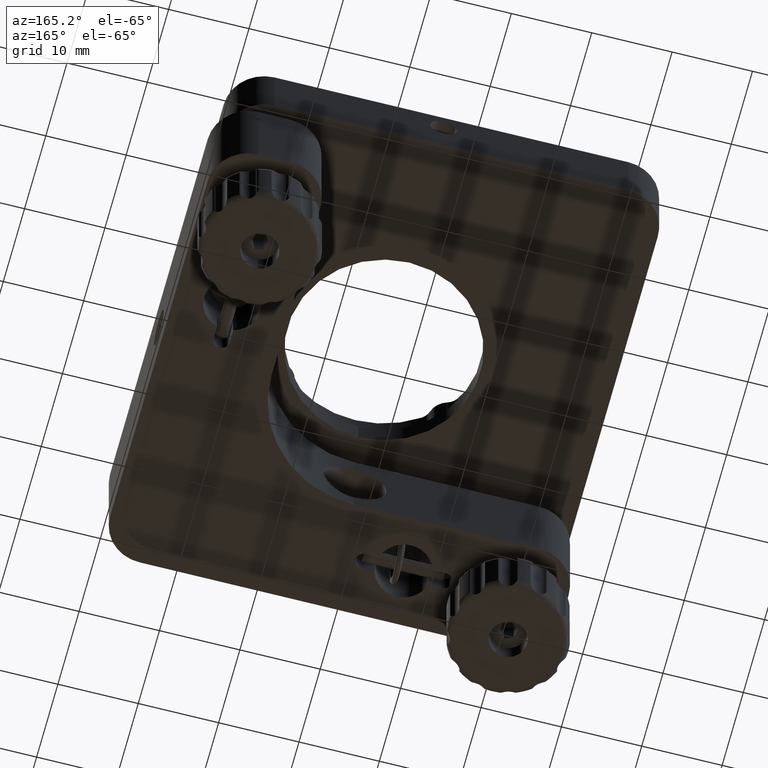
[diagram: clean part render]
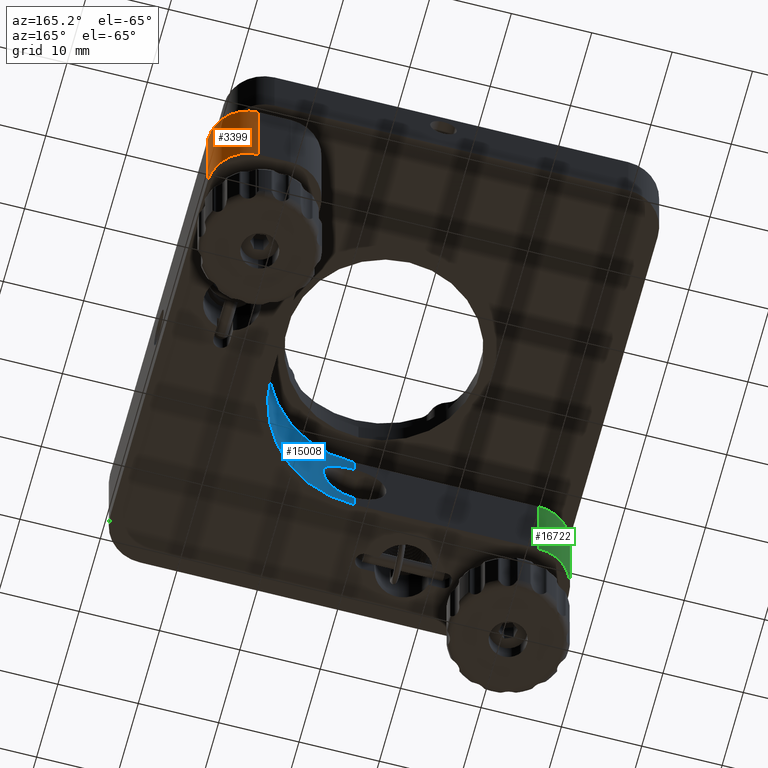
[diagram: same view with three faces highlighted in distinct colors, each labeled with its STEP entity id]
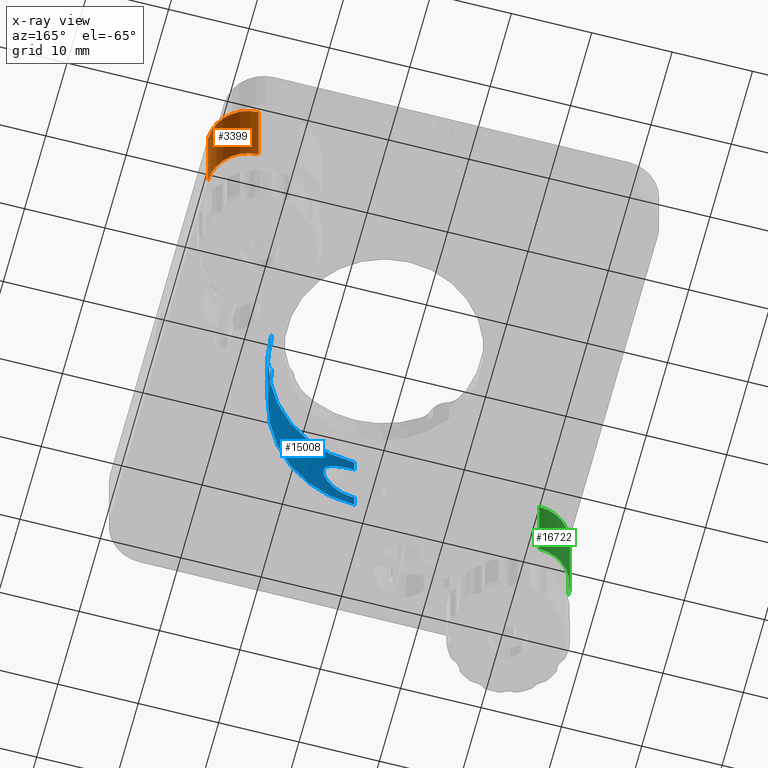
[diagram: x-ray of the same camera — body ghosted, the three highlighted faces saturated]
A machine part, auxiliary view with three faces highlighted in distinct colors.
The next image is the same camera in x-ray (body ghosted, the three faces saturated) — at least one of them is partly hidden behind the body in this view.
Their STEP definitions:

[orange] entity #3399 — the highlighted cylindrical surface (partial cylindrical patch) has radius 5 mm, axis along (0, 0, 1).
#455 = CARTESIAN_POINT ( 'NONE',  ( 28.00000000000000400, 22.99999999999996800, -3.000000000000002700 ) ) ;
#468 = LINE ( 'NONE', #11693, #11351 ) ;
#676 = DIRECTION ( 'NONE',  ( 0.0000000000000000000, 0.0000000000000000000, 1.000000000000000000 ) ) ;
#1554 = AXIS2_PLACEMENT_3D ( 'NONE', #10668, #5513, #11897 ) ;
#2326 = VECTOR ( 'NONE', #13970, 1000.000000000000000 ) ;
#2407 = CARTESIAN_POINT ( 'NONE',  ( 22.99999999999997200, 28.00000000000000000, -3.000000000000002700 ) ) ;
#3018 = ORIENTED_EDGE ( 'NONE', *, *, #9035, .T. ) ;
#3065 = AXIS2_PLACEMENT_3D ( 'NONE', #13152, #9149, #13205 ) ;
#3277 = CARTESIAN_POINT ( 'NONE',  ( 23.00000000000000700, 23.00000000000000000, -15.00000000000000400 ) ) ;
#3399 = ADVANCED_FACE ( 'NONE', ( #11739 ), #16554, .T. ) ;
#3422 = CIRCLE ( 'NONE', #1554, 4.999999999999997300 ) ;
#4701 = ORIENTED_EDGE ( 'NONE', *, *, #10144, .F. ) ;
#5513 = DIRECTION ( 'NONE',  ( 0.0000000000000000000, 0.0000000000000000000, 1.000000000000000000 ) ) ;
#5562 = CARTESIAN_POINT ( 'NONE',  ( 22.99999999999997200, 28.00000000000000000, -15.00000000000000400 ) ) ;
#5801 = VERTEX_POINT ( 'NONE', #2407 ) ;
#6642 = ORIENTED_EDGE ( 'NONE', *, *, #16515, .F. ) ;
#6994 = VERTEX_POINT ( 'NONE', #455 ) ;
#7141 = ORIENTED_EDGE ( 'NONE', *, *, #8921, .T. ) ;
#7391 = CARTESIAN_POINT ( 'NONE',  ( 28.00000000000000400, 22.99999999999996800, -15.00000000000000400 ) ) ;
#8460 = VERTEX_POINT ( 'NONE', #9209 ) ;
#8921 = EDGE_CURVE ( 'NONE', #8460, #14984, #15746, .T. ) ;
#9035 = EDGE_CURVE ( 'NONE', #14984, #5801, #468, .T. ) ;
#9149 = DIRECTION ( 'NONE',  ( 0.0000000000000000000, 0.0000000000000000000, 1.000000000000000000 ) ) ;
#9209 = CARTESIAN_POINT ( 'NONE',  ( 28.00000000000000400, 22.99999999999996800, -15.00000000000000400 ) ) ;
#10007 = AXIS2_PLACEMENT_3D ( 'NONE', #3277, #676, #14038 ) ;
#10144 = EDGE_CURVE ( 'NONE', #8460, #6994, #15955, .T. ) ;
#10411 = DIRECTION ( 'NONE',  ( 0.0000000000000000000, 0.0000000000000000000, 1.000000000000000000 ) ) ;
#10668 = CARTESIAN_POINT ( 'NONE',  ( 23.00000000000000700, 23.00000000000000000, -3.000000000000002700 ) ) ;
#11351 = VECTOR ( 'NONE', #10411, 1000.000000000000000 ) ;
#11693 = CARTESIAN_POINT ( 'NONE',  ( 22.99999999999997200, 28.00000000000000000, -15.00000000000000400 ) ) ;
#11739 = FACE_OUTER_BOUND ( 'NONE', #14529, .T. ) ;
#11897 = DIRECTION ( 'NONE',  ( -1.000000000000000000, 0.0000000000000000000, 0.0000000000000000000 ) ) ;
#13152 = CARTESIAN_POINT ( 'NONE',  ( 23.00000000000000700, 23.00000000000000000, -15.00000000000000400 ) ) ;
#13205 = DIRECTION ( 'NONE',  ( -1.000000000000000000, 0.0000000000000000000, 0.0000000000000000000 ) ) ;
#13970 = DIRECTION ( 'NONE',  ( 0.0000000000000000000, 0.0000000000000000000, 1.000000000000000000 ) ) ;
#14038 = DIRECTION ( 'NONE',  ( 1.000000000000000000, 0.0000000000000000000, 0.0000000000000000000 ) ) ;
#14529 = EDGE_LOOP ( 'NONE', ( #6642, #4701, #7141, #3018 ) ) ;
#14984 = VERTEX_POINT ( 'NONE', #5562 ) ;
#15746 = CIRCLE ( 'NONE', #3065, 4.999999999999997300 ) ;
#15955 = LINE ( 'NONE', #7391, #2326 ) ;
#16515 = EDGE_CURVE ( 'NONE', #6994, #5801, #3422, .T. ) ;
#16554 = CYLINDRICAL_SURFACE ( 'NONE', #10007, 4.999999999999997300 ) ;

[blue] entity #15008 — the highlighted cylindrical surface (partial cylindrical patch) has radius 14 mm, axis along (0, 0, 1).
#17 = CARTESIAN_POINT ( 'NONE',  ( 1.047381011669524100, -13.96315642665532800, -5.130604477163552200 ) ) ;
#49 = DIRECTION ( 'NONE',  ( 1.000000000000000000, 0.0000000000000000000, 0.0000000000000000000 ) ) ;
#98 = CARTESIAN_POINT ( 'NONE',  ( 4.000254002805889700, -13.41633213603272200, -8.741554895105029000 ) ) ;
#248 = VERTEX_POINT ( 'NONE', #4312 ) ;
#284 = ORIENTED_EDGE ( 'NONE', *, *, #12451, .F. ) ;
#365 = EDGE_CURVE ( 'NONE', #10801, #4071, #15535, .T. ) ;
#402 = CARTESIAN_POINT ( 'NONE',  ( 13.56410657494756800, -3.469533750978846900, -11.00782242321290400 ) ) ;
#521 = CARTESIAN_POINT ( 'NONE',  ( 13.78728799883474600, -2.441092728835792400, -12.17948764369810300 ) ) ;
#1021 = LINE ( 'NONE', #1031, #11290 ) ;
#1031 = CARTESIAN_POINT ( 'NONE',  ( -3.003590182049984500E-017, -14.00000000000000000, -15.00000000000000400 ) ) ;
#1088 = DIRECTION ( 'NONE',  ( 0.0000000000000000000, 0.0000000000000000000, 1.000000000000000000 ) ) ;
#1171 = EDGE_CURVE ( 'NONE', #2147, #17198, #12969, .T. ) ;
#1252 = CARTESIAN_POINT ( 'NONE',  ( 14.00000000000000000, 1.901779485492735500E-015, -5.000000000000005300 ) ) ;
#1330 = CARTESIAN_POINT ( 'NONE',  ( -3.003590182049984500E-017, 0.0000000000000000000, -15.00000000000000400 ) ) ;
#1398 = DIRECTION ( 'NONE',  ( 1.000000000000000000, 0.0000000000000000000, 0.0000000000000000000 ) ) ;
#1439 = CARTESIAN_POINT ( 'NONE',  ( 1.294466742960149700, -13.94215066161716100, -12.79380740204941300 ) ) ;
#1632 = CARTESIAN_POINT ( 'NONE',  ( 14.00000000000000000, -0.2656925048559734000, -13.00000000000000000 ) ) ;
#1676 = CARTESIAN_POINT ( 'NONE',  ( 13.74908823207572400, -2.645304200214632300, -12.01158405573234200 ) ) ;
#1734 = CARTESIAN_POINT ( 'NONE',  ( 13.47603777632076000, -3.795697206113587600, -7.710862613213605800 ) ) ;
#1847 = CARTESIAN_POINT ( 'NONE',  ( 13.45445197353499000, -3.870481272222657100, -10.04346952809518700 ) ) ;
#2026 = ORIENTED_EDGE ( 'NONE', *, *, #9817, .T. ) ;
#2119 = CARTESIAN_POINT ( 'NONE',  ( 14.00000000000000000, 1.901779485492735500E-015, -15.00000000000000400 ) ) ;
#2147 = VERTEX_POINT ( 'NONE', #15147 ) ;
#2241 = CARTESIAN_POINT ( 'NONE',  ( -3.003590182049984500E-017, -13.99999999999999800, -5.000000000000002700 ) ) ;
#2673 = CARTESIAN_POINT ( 'NONE',  ( 0.2657086982105468200, -14.00000000000000000, -5.000000000000002700 ) ) ;
#2723 = CARTESIAN_POINT ( 'NONE',  ( 2.645152070889735800, -13.74913537915571700, -5.988117081359066100 ) ) ;
#3115 = CARTESIAN_POINT ( 'NONE',  ( 13.53117571701345900, -3.594189080255519200, -7.224895119188465400 ) ) ;
#3159 = CARTESIAN_POINT ( 'NONE',  ( 13.74913537915571700, -2.645152070889732300, -5.988117081359066100 ) ) ;
#3401 = CARTESIAN_POINT ( 'NONE',  ( -3.003590182049984500E-017, -14.00000000000000000, -15.00000000000000400 ) ) ;
#3484 = VERTEX_POINT ( 'NONE', #2241 ) ;
#3689 = CARTESIAN_POINT ( 'NONE',  ( 2.012962963995443800, -13.85625576759332700, -5.533645932257562600 ) ) ;
#4071 = VERTEX_POINT ( 'NONE', #7893 ) ;
#4108 = CARTESIAN_POINT ( 'NONE',  ( 1.296731905514450800, -13.94192594928529200, -5.207024065111083300 ) ) ;
#4166 = CARTESIAN_POINT ( 'NONE',  ( 3.999742191200195100, -13.41648472869260700, -9.266248686648003400 ) ) ;
#4312 = CARTESIAN_POINT ( 'NONE',  ( -3.003590182049984500E-017, -14.00000000000000000, -3.000000000000002700 ) ) ;
#4364 = EDGE_CURVE ( 'NONE', #9031, #248, #16345, .T. ) ;
#4458 = CARTESIAN_POINT ( 'NONE',  ( 13.56400834463705800, -3.469834524077928700, -6.993087938977205400 ) ) ;
#4510 = ORIENTED_EDGE ( 'NONE', *, *, #7225, .T. ) ;
#4591 = CARTESIAN_POINT ( 'NONE',  ( 13.94215066161716100, -1.294466742960150400, -12.79380740204941000 ) ) ;
#4721 = DIRECTION ( 'NONE',  ( 0.0000000000000000000, 0.0000000000000000000, 1.000000000000000000 ) ) ;
#4867 = CARTESIAN_POINT ( 'NONE',  ( 13.94192594928529200, -1.296731905514449500, -5.207024065111086000 ) ) ;
#5040 = CARTESIAN_POINT ( 'NONE',  ( 2.444847639018987700, -13.78660813301676100, -5.823468803969471500 ) ) ;
#5133 = CYLINDRICAL_SURFACE ( 'NONE', #7151, 14.00000000000000000 ) ;
#5191 = CARTESIAN_POINT ( 'NONE',  ( -3.003590182049984500E-017, 0.0000000000000000000, -3.000000000000002700 ) ) ;
#5298 = EDGE_CURVE ( 'NONE', #10801, #2147, #14678, .T. ) ;
#5354 = CARTESIAN_POINT ( 'NONE',  ( 3.792861682036381400, -13.47683005494410200, -10.29688808568371900 ) ) ;
#5470 = CARTESIAN_POINT ( 'NONE',  ( 3.469533750978847800, -13.56410657494756600, -11.00782242321290400 ) ) ;
#5777 = CARTESIAN_POINT ( 'NONE',  ( 13.41648472869261100, -3.999742191200191600, -9.266248686648001600 ) ) ;
#5844 = ORIENTED_EDGE ( 'NONE', *, *, #11607, .F. ) ;
#5941 = CARTESIAN_POINT ( 'NONE',  ( 13.96370391061652500, -1.039700811152284300, -12.87136195347459600 ) ) ;
#6012 = CARTESIAN_POINT ( 'NONE',  ( 14.00000000000000000, 1.901779485492735500E-015, -5.000000000000005300 ) ) ;
#6056 = ORIENTED_EDGE ( 'NONE', *, *, #365, .F. ) ;
#6174 = CARTESIAN_POINT ( 'NONE',  ( 13.96315642665532800, -1.047381011669526100, -5.130604477163555700 ) ) ;
#6348 = CARTESIAN_POINT ( 'NONE',  ( 3.795697206113590300, -13.47603777632076000, -7.710862613213606700 ) ) ;
#6414 = CARTESIAN_POINT ( 'NONE',  ( 3.592859246226274700, -13.53152284503525100, -10.77738034271075300 ) ) ;
#6715 = CARTESIAN_POINT ( 'NONE',  ( 3.973928279618705000, -13.42426151470659500, -9.526638360866581200 ) ) ;
#6767 = CARTESIAN_POINT ( 'NONE',  ( 3.469834524077930000, -13.56400834463705800, -6.993087938977200900 ) ) ;
#7108 = EDGE_LOOP ( 'NONE', ( #5844, #6056, #10141, #10125, #2026, #4510, #14721, #284 ) ) ;
#7151 = AXIS2_PLACEMENT_3D ( 'NONE', #1330, #14749, #1398 ) ;
#7184 = CARTESIAN_POINT ( 'NONE',  ( 13.63459152105524400, -3.181192866180117700, -6.561258604663749800 ) ) ;
#7225 = EDGE_CURVE ( 'NONE', #3484, #248, #1021, .T. ) ;
#7245 = CARTESIAN_POINT ( 'NONE',  ( 13.85707990081641800, -2.007381552166231500, -12.46965339641102800 ) ) ;
#7474 = CARTESIAN_POINT ( 'NONE',  ( 0.5266779375071519700, -13.99244850018113500, -12.97379308742473600 ) ) ;
#7623 = CARTESIAN_POINT ( 'NONE',  ( -3.003590182049984500E-017, -13.99999999999999800, -13.00000000000000400 ) ) ;
#7893 = CARTESIAN_POINT ( 'NONE',  ( 14.00000000000000000, 1.901779485492735500E-015, -13.00000000000000200 ) ) ;
#8235 = VERTEX_POINT ( 'NONE', #1252 ) ;
#8288 = FACE_OUTER_BOUND ( 'NONE', #7108, .T. ) ;
#8520 = CARTESIAN_POINT ( 'NONE',  ( 13.42426151470659700, -3.973928279618702300, -9.526638360866579400 ) ) ;
#8558 = DIRECTION ( 'NONE',  ( -0.0000000000000000000, -0.0000000000000000000, -1.000000000000000000 ) ) ;
#9031 = VERTEX_POINT ( 'NONE', #15728 ) ;
#9367 = CARTESIAN_POINT ( 'NONE',  ( 3.870481272222659800, -13.45445197353499000, -10.04346952809518900 ) ) ;
#9435 = DIRECTION ( 'NONE',  ( -0.0000000000000000000, -0.0000000000000000000, -1.000000000000000000 ) ) ;
#9549 = B_SPLINE_CURVE_WITH_KNOTS ( 'NONE', 3,
 ( #12545, #1632, #9725, #5941, #4591, #15154, #7245, #521, #1676, #16433, #11113, #402, #11072, #9876, #1847, #8520, #5777, #11245, #15095, #9785, #1734, #3115, #4458, #7184, #11181, #3159, #10101, #14219, #12723, #4867, #6174, #14042, #14097, #6012 ),
 .UNSPECIFIED., .F., .F.,
 ( 4, 2, 2, 2, 2, 2, 2, 2, 2, 2, 2, 2, 2, 2, 2, 2, 4 ),
 ( 1.846765261776856000E-018, 0.0007854640763440356300, 0.001570928152688069500, 0.002356392229032102900, 0.003141856305376136900, 0.003927320381720170900, 0.004712784458064204000, 0.005498248534408238000, 0.006283712610752272000, 0.007069176687096306000, 0.007854640763440340000, 0.008640104839784373100, 0.009425568916128406300, 0.01021103299247244100, 0.01099649706881647400, 0.01178196114516050900, 0.01256742522150454200 ),
 .UNSPECIFIED. ) ;
#9626 = AXIS2_PLACEMENT_3D ( 'NONE', #12535, #8558, #9932 ) ;
#9725 = CARTESIAN_POINT ( 'NONE',  ( 13.99244850018113500, -0.5266779375071534200, -12.97379308742473500 ) ) ;
#9785 = CARTESIAN_POINT ( 'NONE',  ( 13.45414212209215800, -3.871551344183472100, -7.960870286123221000 ) ) ;
#9817 = EDGE_CURVE ( 'NONE', #17198, #3484, #11341, .T. ) ;
#9876 = CARTESIAN_POINT ( 'NONE',  ( 13.47683005494410200, -3.792861682036379200, -10.29688808568371900 ) ) ;
#9932 = DIRECTION ( 'NONE',  ( 1.000000000000000000, 0.0000000000000000000, 0.0000000000000000000 ) ) ;
#10101 = CARTESIAN_POINT ( 'NONE',  ( 13.78660813301676100, -2.444847639018986800, -5.823468803969474200 ) ) ;
#10125 = ORIENTED_EDGE ( 'NONE', *, *, #1171, .T. ) ;
#10129 = VECTOR ( 'NONE', #16084, 1000.000000000000000 ) ;
#10141 = ORIENTED_EDGE ( 'NONE', *, *, #5298, .T. ) ;
#10170 = LINE ( 'NONE', #16677, #15818 ) ;
#10237 = DIRECTION ( 'NONE',  ( 0.0000000000000000000, 0.0000000000000000000, 1.000000000000000000 ) ) ;
#10801 = VERTEX_POINT ( 'NONE', #2119 ) ;
#10814 = CARTESIAN_POINT ( 'NONE',  ( 2.645304200214632800, -13.74908823207572400, -12.01158405573234900 ) ) ;
#11072 = CARTESIAN_POINT ( 'NONE',  ( 13.53152284503525100, -3.592859246226273800, -10.77738034271075100 ) ) ;
#11113 = CARTESIAN_POINT ( 'NONE',  ( 13.63556036348728300, -3.177128451827486300, -11.44435474776599500 ) ) ;
#11181 = CARTESIAN_POINT ( 'NONE',  ( 13.67291008003549300, -3.014478909487929800, -6.357806763693138100 ) ) ;
#11245 = CARTESIAN_POINT ( 'NONE',  ( 13.41633213603272300, -4.000254002805887100, -8.741554895105030800 ) ) ;
#11290 = VECTOR ( 'NONE', #1088, 1000.000000000000000 ) ;
#11341 = B_SPLINE_CURVE_WITH_KNOTS ( 'NONE', 3,
 ( #7623, #11631, #7474, #12902, #1439, #13495, #14392, #12139, #10814, #12027, #13425, #5470, #6414, #5354, #9367, #6715, #4166, #98, #14804, #14732, #6348, #16008, #6767, #15706, #17312, #2723, #5040, #3689, #17360, #4108, #17, #14330, #2673, #15664 ),
 .UNSPECIFIED., .F., .F.,
 ( 4, 2, 2, 2, 2, 2, 2, 2, 2, 2, 2, 2, 2, 2, 2, 2, 4 ),
 ( 2.575317251020566600E-018, 0.0007854640763440368200, 0.001570928152688071000, 0.002356392229032105500, 0.003141856305376139500, 0.003927320381720173500, 0.004712784458064208300, 0.005498248534408242300, 0.006283712610752276300, 0.007069176687096310300, 0.007854640763440343500, 0.008640104839784378300, 0.009425568916128413200, 0.01021103299247244600, 0.01099649706881648100, 0.01178196114516051400, 0.01256742522150454900 ),
 .UNSPECIFIED. ) ;
#11607 = EDGE_CURVE ( 'NONE', #4071, #8235, #9549, .T. ) ;
#11631 = CARTESIAN_POINT ( 'NONE',  ( 0.2656925048559710700, -14.00000000000000000, -13.00000000000000400 ) ) ;
#12012 = CARTESIAN_POINT ( 'NONE',  ( -3.003590182049984500E-017, -13.99999999999999800, -13.00000000000000400 ) ) ;
#12027 = CARTESIAN_POINT ( 'NONE',  ( 3.012074847234742100, -13.67342190674054000, -11.64474534711194100 ) ) ;
#12139 = CARTESIAN_POINT ( 'NONE',  ( 2.441092728835793300, -13.78728799883474600, -12.17948764369810600 ) ) ;
#12451 = EDGE_CURVE ( 'NONE', #8235, #9031, #10170, .T. ) ;
#12535 = CARTESIAN_POINT ( 'NONE',  ( -3.003590182049984500E-017, 0.0000000000000000000, -15.00000000000000400 ) ) ;
#12545 = CARTESIAN_POINT ( 'NONE',  ( 14.00000000000000000, 1.901779485492735500E-015, -13.00000000000000200 ) ) ;
#12723 = CARTESIAN_POINT ( 'NONE',  ( 13.88864995381737600, -1.778824125781521800, -5.407791096419478200 ) ) ;
#12902 = CARTESIAN_POINT ( 'NONE',  ( 1.039700811152283000, -13.96370391061652500, -12.87136195347459700 ) ) ;
#12969 = LINE ( 'NONE', #3401, #13838 ) ;
#13425 = CARTESIAN_POINT ( 'NONE',  ( 3.177128451827487200, -13.63556036348727900, -11.44435474776600100 ) ) ;
#13495 = CARTESIAN_POINT ( 'NONE',  ( 1.778186504998207500, -13.88874587474708000, -12.59258562958728000 ) ) ;
#13838 = VECTOR ( 'NONE', #10237, 1000.000000000000000 ) ;
#13856 = AXIS2_PLACEMENT_3D ( 'NONE', #5191, #9435, #49 ) ;
#14042 = CARTESIAN_POINT ( 'NONE',  ( 13.99229242761561300, -0.5315044674720783600, -5.026747969633714100 ) ) ;
#14097 = CARTESIAN_POINT ( 'NONE',  ( 14.00000000000000000, -0.2657086982105496500, -5.000000000000005300 ) ) ;
#14219 = CARTESIAN_POINT ( 'NONE',  ( 13.85625576759332700, -2.012962963995443800, -5.533645932257566200 ) ) ;
#14330 = CARTESIAN_POINT ( 'NONE',  ( 0.5315044674720768000, -13.99229242761561300, -5.026747969633710500 ) ) ;
#14392 = CARTESIAN_POINT ( 'NONE',  ( 2.007381552166231900, -13.85707990081641800, -12.46965339641103100 ) ) ;
#14587 = CARTESIAN_POINT ( 'NONE',  ( 14.00000000000000000, 1.901779485492735500E-015, -15.00000000000000400 ) ) ;
#14678 = CIRCLE ( 'NONE', #9626, 14.00000000000000000 ) ;
#14721 = ORIENTED_EDGE ( 'NONE', *, *, #4364, .F. ) ;
#14732 = CARTESIAN_POINT ( 'NONE',  ( 3.871551344183473000, -13.45414212209215200, -7.960870286123219200 ) ) ;
#14749 = DIRECTION ( 'NONE',  ( 0.0000000000000000000, 0.0000000000000000000, 1.000000000000000000 ) ) ;
#14804 = CARTESIAN_POINT ( 'NONE',  ( 3.974046004526944100, -13.42422468547091400, -8.474967880207373100 ) ) ;
#15008 = ADVANCED_FACE ( 'NONE', ( #8288 ), #5133, .F. ) ;
#15095 = CARTESIAN_POINT ( 'NONE',  ( 13.42422468547091800, -3.974046004526941500, -8.474967880207369600 ) ) ;
#15147 = CARTESIAN_POINT ( 'NONE',  ( -3.003590182049984500E-017, -14.00000000000000000, -15.00000000000000400 ) ) ;
#15154 = CARTESIAN_POINT ( 'NONE',  ( 13.88874587474708000, -1.778186504998206900, -12.59258562958727400 ) ) ;
#15535 = LINE ( 'NONE', #14587, #10129 ) ;
#15664 = CARTESIAN_POINT ( 'NONE',  ( -3.003590182049984500E-017, -13.99999999999999800, -5.000000000000002700 ) ) ;
#15706 = CARTESIAN_POINT ( 'NONE',  ( 3.181192866180118100, -13.63459152105524400, -6.561258604663746200 ) ) ;
#15728 = CARTESIAN_POINT ( 'NONE',  ( 14.00000000000000000, 1.901779485492735500E-015, -3.000000000000002700 ) ) ;
#15818 = VECTOR ( 'NONE', #4721, 1000.000000000000000 ) ;
#16008 = CARTESIAN_POINT ( 'NONE',  ( 3.594189080255521000, -13.53117571701345400, -7.224895119188462700 ) ) ;
#16084 = DIRECTION ( 'NONE',  ( 0.0000000000000000000, 0.0000000000000000000, 1.000000000000000000 ) ) ;
#16345 = CIRCLE ( 'NONE', #13856, 14.00000000000000000 ) ;
#16433 = CARTESIAN_POINT ( 'NONE',  ( 13.67342190674054000, -3.012074847234741200, -11.64474534711194100 ) ) ;
#16677 = CARTESIAN_POINT ( 'NONE',  ( 14.00000000000000000, 1.901779485492735500E-015, -15.00000000000000400 ) ) ;
#17198 = VERTEX_POINT ( 'NONE', #12012 ) ;
#17312 = CARTESIAN_POINT ( 'NONE',  ( 3.014478909487934300, -13.67291008003549300, -6.357806763693139000 ) ) ;
#17360 = CARTESIAN_POINT ( 'NONE',  ( 1.778824125781522900, -13.88864995381737600, -5.407791096419475500 ) ) ;

[green] entity #16722 — the highlighted cylindrical surface (partial cylindrical patch) has radius 5 mm, axis along (0, 0, 1).
#870 = VERTEX_POINT ( 'NONE', #14770 ) ;
#1201 = CARTESIAN_POINT ( 'NONE',  ( -22.99999999999995400, -14.00000000000000200, -15.00000000000000400 ) ) ;
#1517 = VECTOR ( 'NONE', #1704, 1000.000000000000000 ) ;
#1704 = DIRECTION ( 'NONE',  ( 0.0000000000000000000, 0.0000000000000000000, 1.000000000000000000 ) ) ;
#1752 = EDGE_CURVE ( 'NONE', #8427, #870, #11916, .T. ) ;
#1823 = DIRECTION ( 'NONE',  ( 0.0000000000000000000, 0.0000000000000000000, 1.000000000000000000 ) ) ;
#2886 = DIRECTION ( 'NONE',  ( 0.0000000000000000000, 0.0000000000000000000, 1.000000000000000000 ) ) ;
#3355 = AXIS2_PLACEMENT_3D ( 'NONE', #7211, #1823, #4496 ) ;
#3576 = VERTEX_POINT ( 'NONE', #1201 ) ;
#3976 = CARTESIAN_POINT ( 'NONE',  ( -27.99999999999998900, -19.00000000000003900, -15.00000000000000400 ) ) ;
#4496 = DIRECTION ( 'NONE',  ( 1.000000000000000000, 0.0000000000000000000, 0.0000000000000000000 ) ) ;
#4740 = LINE ( 'NONE', #3976, #16844 ) ;
#5441 = AXIS2_PLACEMENT_3D ( 'NONE', #6047, #6098, #12527 ) ;
#5614 = EDGE_CURVE ( 'NONE', #3576, #16857, #7594, .T. ) ;
#6047 = CARTESIAN_POINT ( 'NONE',  ( -22.99999999999999300, -19.00000000000000000, -3.000000000000002700 ) ) ;
#6098 = DIRECTION ( 'NONE',  ( 0.0000000000000000000, 0.0000000000000000000, 1.000000000000000000 ) ) ;
#7089 = ORIENTED_EDGE ( 'NONE', *, *, #5614, .T. ) ;
#7211 = CARTESIAN_POINT ( 'NONE',  ( -22.99999999999999300, -19.00000000000000000, -15.00000000000000400 ) ) ;
#7502 = CARTESIAN_POINT ( 'NONE',  ( -27.99999999999998900, -19.00000000000003900, -15.00000000000000400 ) ) ;
#7594 = CIRCLE ( 'NONE', #13406, 4.999999999999997300 ) ;
#7849 = ORIENTED_EDGE ( 'NONE', *, *, #15718, .F. ) ;
#8427 = VERTEX_POINT ( 'NONE', #17209 ) ;
#9287 = DIRECTION ( 'NONE',  ( 0.0000000000000000000, 0.0000000000000000000, 1.000000000000000000 ) ) ;
#9501 = LINE ( 'NONE', #11144, #1517 ) ;
#9900 = EDGE_LOOP ( 'NONE', ( #10974, #7849, #7089, #15406 ) ) ;
#10974 = ORIENTED_EDGE ( 'NONE', *, *, #1752, .F. ) ;
#11144 = CARTESIAN_POINT ( 'NONE',  ( -22.99999999999995400, -14.00000000000000200, -15.00000000000000400 ) ) ;
#11916 = CIRCLE ( 'NONE', #5441, 4.999999999999997300 ) ;
#11964 = CYLINDRICAL_SURFACE ( 'NONE', #3355, 4.999999999999997300 ) ;
#12236 = DIRECTION ( 'NONE',  ( -1.000000000000000000, 0.0000000000000000000, 0.0000000000000000000 ) ) ;
#12527 = DIRECTION ( 'NONE',  ( -1.000000000000000000, 0.0000000000000000000, 0.0000000000000000000 ) ) ;
#12941 = EDGE_CURVE ( 'NONE', #16857, #870, #4740, .T. ) ;
#13105 = CARTESIAN_POINT ( 'NONE',  ( -22.99999999999999300, -19.00000000000000000, -15.00000000000000400 ) ) ;
#13406 = AXIS2_PLACEMENT_3D ( 'NONE', #13105, #2886, #12236 ) ;
#14770 = CARTESIAN_POINT ( 'NONE',  ( -27.99999999999998900, -19.00000000000003900, -3.000000000000002700 ) ) ;
#15406 = ORIENTED_EDGE ( 'NONE', *, *, #12941, .T. ) ;
#15718 = EDGE_CURVE ( 'NONE', #3576, #8427, #9501, .T. ) ;
#16374 = FACE_OUTER_BOUND ( 'NONE', #9900, .T. ) ;
#16722 = ADVANCED_FACE ( 'NONE', ( #16374 ), #11964, .T. ) ;
#16844 = VECTOR ( 'NONE', #9287, 1000.000000000000000 ) ;
#16857 = VERTEX_POINT ( 'NONE', #7502 ) ;
#17209 = CARTESIAN_POINT ( 'NONE',  ( -22.99999999999995400, -14.00000000000000200, -3.000000000000002700 ) ) ;